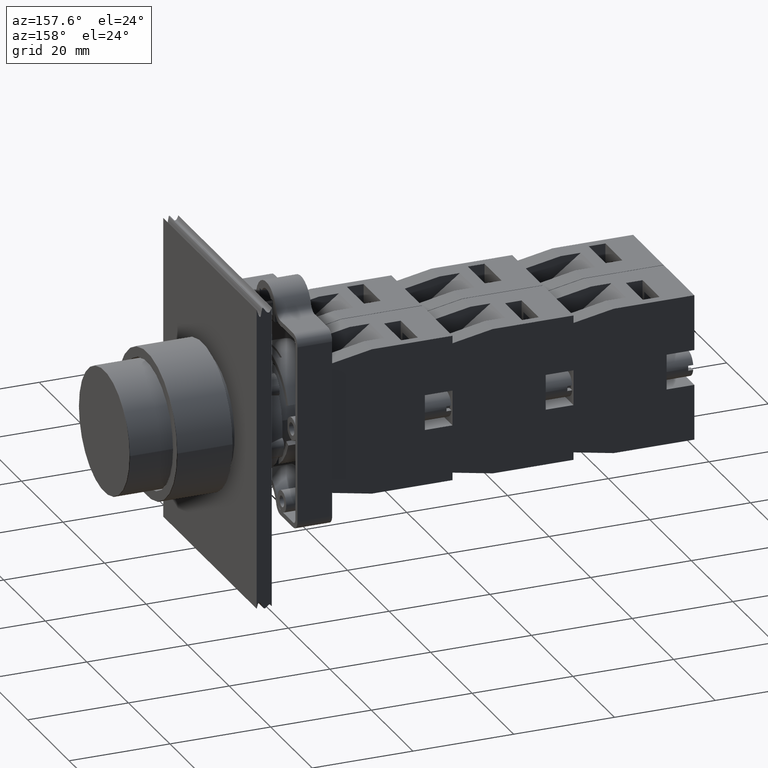
[diagram: clean part render]
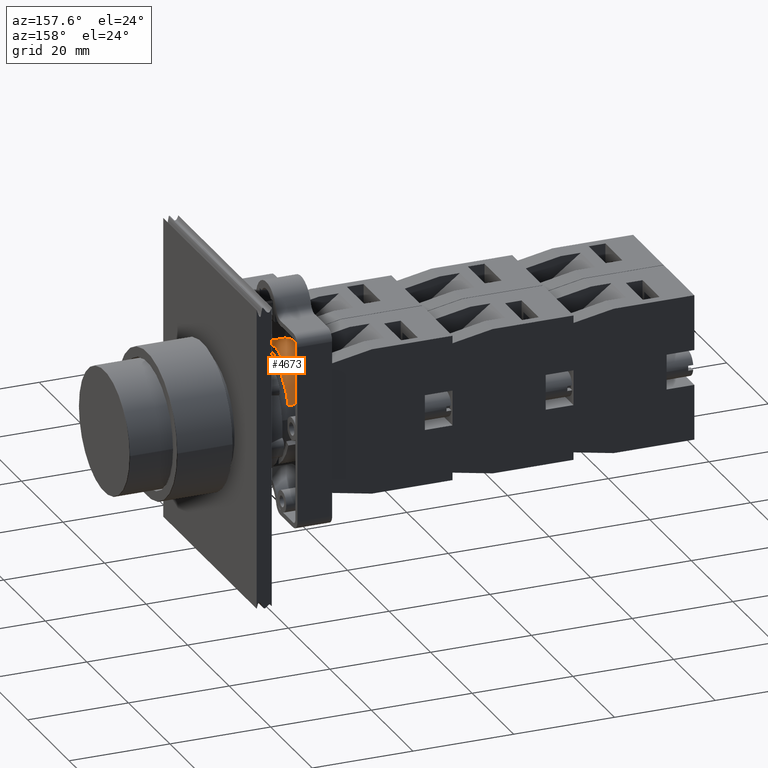
[diagram: same view with one face highlighted and labeled with its STEP entity id]
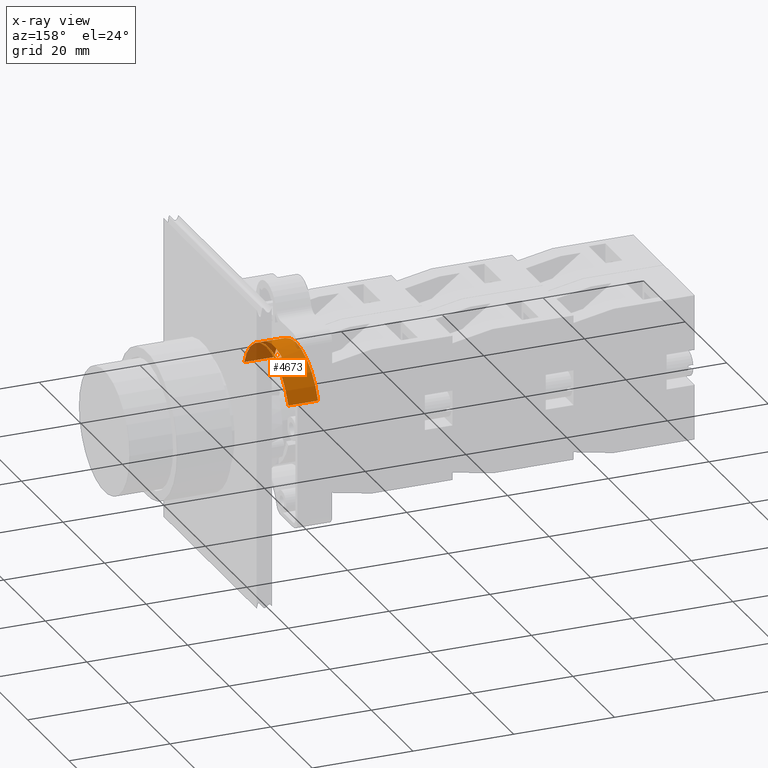
[diagram: x-ray of the same camera — body ghosted, the highlighted face saturated]
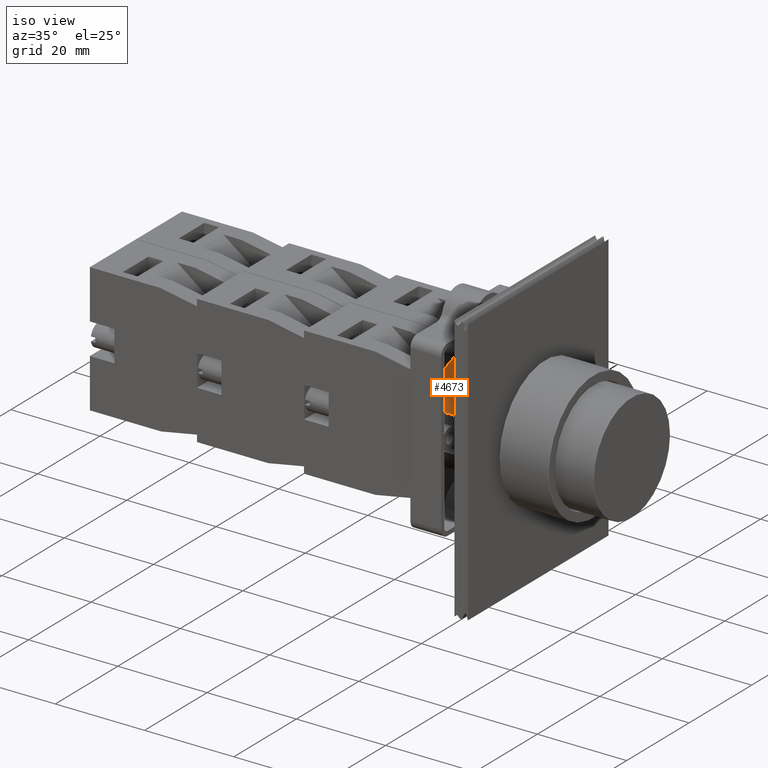
[diagram: same view with one face highlighted and labeled with its STEP entity id]
A machine part, auxiliary view. The second image highlights one B-rep face of the part: STEP entity #4673.
The next image is the same camera in x-ray: the body ghosted, the highlighted face saturated — about 19% of this face is hidden behind the body in this view.
A second angle (iso view) of the same face is appended — the face is thin or edge-on in the first view.
In plain terms, the highlighted cylindrical surface (partial cylindrical patch) has radius 11.35 mm, axis along (1, -0, 0).
Its self-contained STEP definition (entity closure, byte-faithful):
#3495=CARTESIAN_POINT('',(-21.812615408991540,-0.050578387146383,0.0));
#3496=VERTEX_POINT('',#3495);
#3497=CARTESIAN_POINT('',(-0.566637799102790,-0.050578387146381,0.0));
#3498=VERTEX_POINT('',#3497);
#3499=CARTESIAN_POINT('',(-11.189626604047165,-4.047403233199363,0.0));
#3500=DIRECTION('',(0.0,0.0,-1.0));
#3501=DIRECTION('',(1.0,0.0,0.0));
#3502=AXIS2_PLACEMENT_3D('',#3499,#3500,#3501);
#3503=CIRCLE('',#3502,11.349999999999998);
#3504=EDGE_CURVE('',#3496,#3498,#3503,.T.);
#4227=CARTESIAN_POINT('',(-0.566637799102790,-0.050578387146381,5.900000000000000));
#4228=VERTEX_POINT('',#4227);
#4235=CARTESIAN_POINT('',(-21.812615408991540,-0.050578387146383,5.900000000000000));
#4236=VERTEX_POINT('',#4235);
#4237=CARTESIAN_POINT('',(-11.189626604047165,-4.047403233199363,5.900000000000000));
#4238=DIRECTION('',(0.0,0.0,-1.0));
#4239=DIRECTION('',(1.0,0.0,0.0));
#4240=AXIS2_PLACEMENT_3D('',#4237,#4238,#4239);
#4241=CIRCLE('',#4240,11.349999999999998);
#4242=EDGE_CURVE('',#4236,#4228,#4241,.T.);
#4517=CARTESIAN_POINT('',(-15.061382272053898,6.621805174515694,0.429342686118525));
#4518=VERTEX_POINT('',#4517);
#4519=CARTESIAN_POINT('',(-15.061382272064957,6.621805174511665,1.517273721474545));
#4520=VERTEX_POINT('',#4519);
#4521=CARTESIAN_POINT('',(-15.061382272053898,6.621805174515694,0.429342686118525));
#4522=DIRECTION('',(-1.016572E-011,-3.703155E-012,1.0));
#4523=VECTOR('',#4522,1.087931035356020);
#4524=LINE('',#4521,#4523);
#4525=EDGE_CURVE('',#4518,#4520,#4524,.T.);
#4563=CARTESIAN_POINT('',(-7.317870936040426,6.621805174515695,0.429342686118515));
#4564=VERTEX_POINT('',#4563);
#4565=CARTESIAN_POINT('',(-11.189626604047165,-4.047403233199363,0.429342686118512));
#4566=DIRECTION('',(0.0,0.0,1.0));
#4567=DIRECTION('',(1.0,0.0,0.0));
#4568=AXIS2_PLACEMENT_3D('',#4565,#4566,#4567);
#4569=CIRCLE('',#4568,11.349999999999998);
#4570=EDGE_CURVE('',#4564,#4518,#4569,.T.);
#4603=CARTESIAN_POINT('',(-7.317870936029367,6.621805174511664,1.517273721474545));
#4604=VERTEX_POINT('',#4603);
#4605=CARTESIAN_POINT('',(-11.189626604047165,-4.047403233199363,1.517273721474546));
#4606=DIRECTION('',(0.0,0.0,-1.0));
#4607=DIRECTION('',(1.0,0.0,0.0));
#4608=AXIS2_PLACEMENT_3D('',#4605,#4606,#4607);
#4609=CIRCLE('',#4608,11.349999999999998);
#4610=EDGE_CURVE('',#4520,#4604,#4609,.T.);
#4635=CARTESIAN_POINT('',(-7.317870936040426,6.621805174515695,0.429342686118515));
#4636=DIRECTION('',(1.016490E-011,-3.704788E-012,1.0));
#4637=VECTOR('',#4636,1.087931035356030);
#4638=LINE('',#4635,#4637);
#4639=EDGE_CURVE('',#4604,#4564,#4638,.F.);
#4646=CARTESIAN_POINT('',(-11.189626604047165,-4.047403233199363,6.900000000000000));
#4647=DIRECTION('',(0.0,0.0,-1.0));
#4648=DIRECTION('',(1.0,0.0,0.0));
#4649=AXIS2_PLACEMENT_3D('',#4646,#4647,#4648);
#4650=CYLINDRICAL_SURFACE('',#4649,11.349999999999998);
#4651=ORIENTED_EDGE('',*,*,#3504,.F.);
#4652=CARTESIAN_POINT('',(-21.812615408991540,-0.050578387146383,0.0));
#4653=DIRECTION('',(0.0,0.0,1.0));
#4654=VECTOR('',#4653,5.900000000000000);
#4655=LINE('',#4652,#4654);
#4656=EDGE_CURVE('',#4236,#3496,#4655,.F.);
#4657=ORIENTED_EDGE('',*,*,#4656,.F.);
#4658=ORIENTED_EDGE('',*,*,#4242,.T.);
#4659=CARTESIAN_POINT('',(-0.566637799102790,-0.050578387146381,5.900000000000000));
#4660=DIRECTION('',(0.0,0.0,-1.0));
#4661=VECTOR('',#4660,5.900000000000000);
#4662=LINE('',#4659,#4661);
#4663=EDGE_CURVE('',#4228,#3498,#4662,.T.);
#4664=ORIENTED_EDGE('',*,*,#4663,.T.);
#4665=EDGE_LOOP('',(#4651,#4657,#4658,#4664));
#4666=FACE_OUTER_BOUND('',#4665,.T.);
#4667=ORIENTED_EDGE('',*,*,#4570,.F.);
#4668=ORIENTED_EDGE('',*,*,#4639,.F.);
#4669=ORIENTED_EDGE('',*,*,#4610,.F.);
#4670=ORIENTED_EDGE('',*,*,#4525,.F.);
#4671=EDGE_LOOP('',(#4667,#4668,#4669,#4670));
#4672=FACE_BOUND('',#4671,.T.);
#4673=ADVANCED_FACE('',(#4666,#4672),#4650,.T.);